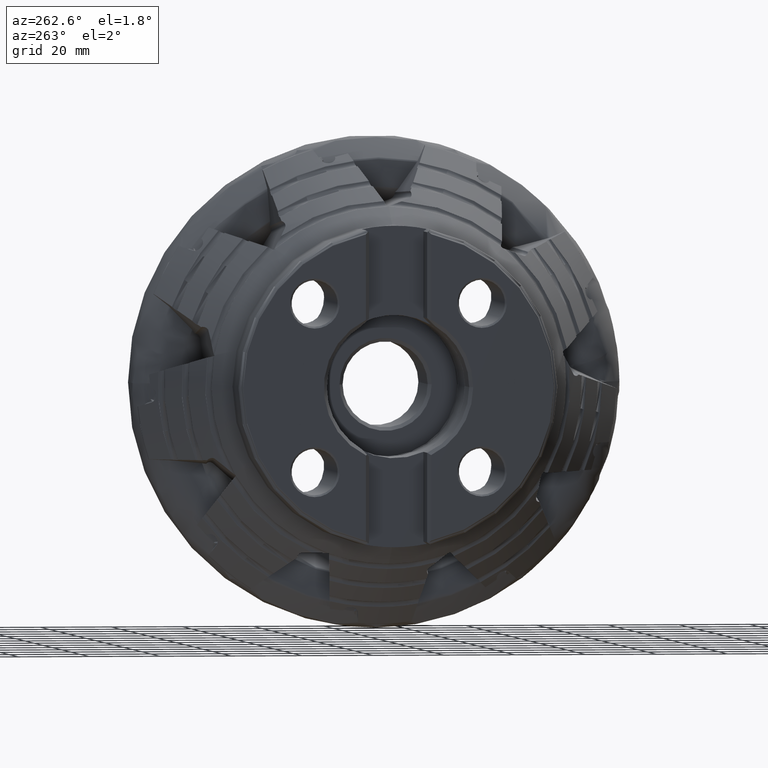
[diagram: clean part render]
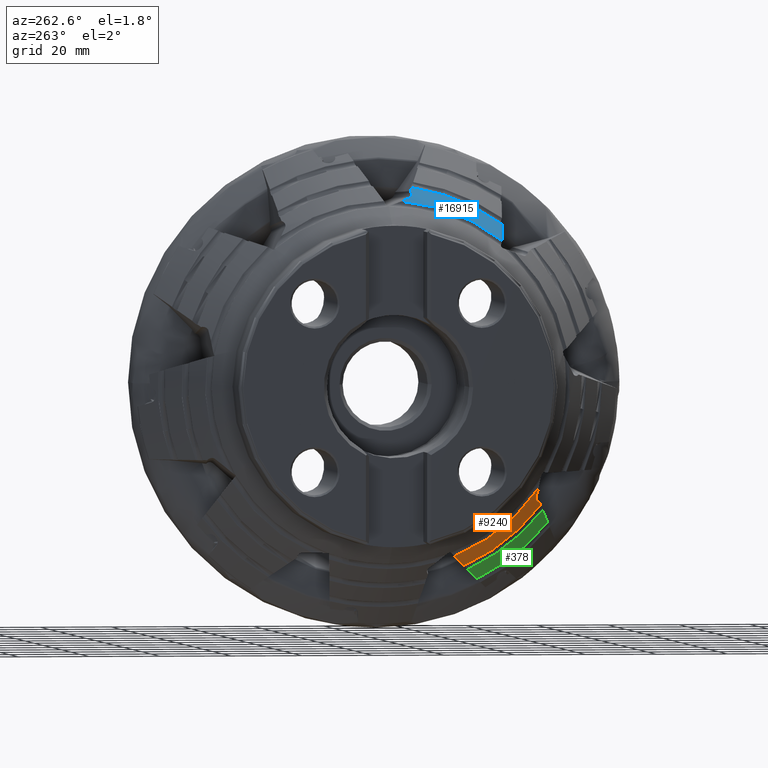
[diagram: same view with three faces highlighted in distinct colors, each labeled with its STEP entity id]
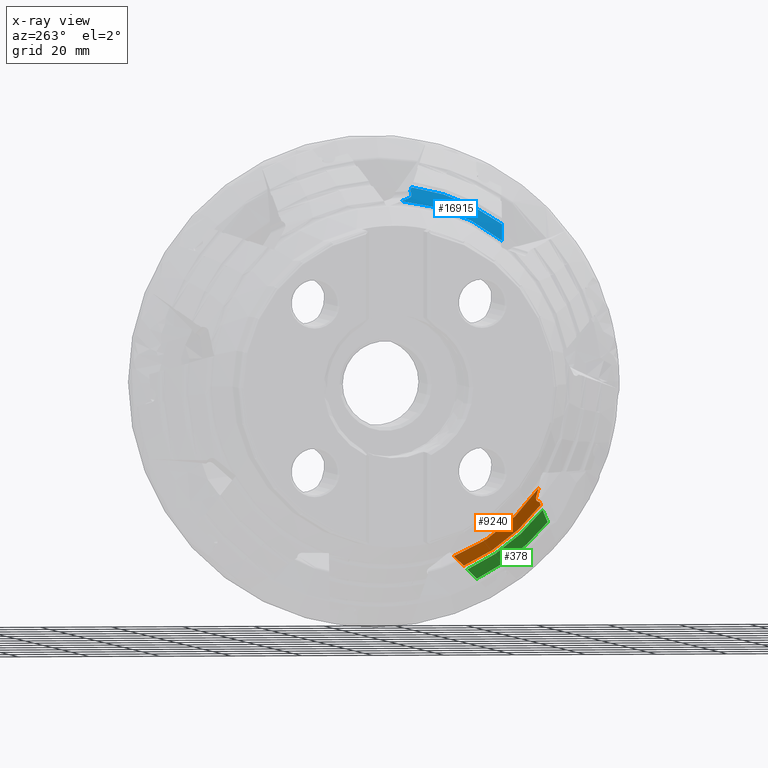
[diagram: x-ray of the same camera — body ghosted, the three highlighted faces saturated]
A machine part, auxiliary view with three faces highlighted in distinct colors.
The next image is the same camera in x-ray (body ghosted, the three faces saturated) — at least one of them is partly hidden behind the body in this view.
Their STEP definitions:

[orange] entity #9240 — the highlighted conical surface has half-angle 33.847 deg.
#342 = CARTESIAN_POINT ( 'NONE',  ( -35.91801058815429600, -42.08881131558297300, -32.21710358558977600 ) ) ;
#543 = EDGE_CURVE ( 'NONE', #12804, #7038, #8967, .T. ) ;
#1529 = CARTESIAN_POINT ( 'NONE',  ( -32.16035626415860800, -43.90779307008983100, -33.98536976128017500 ) ) ;
#1726 = CARTESIAN_POINT ( 'NONE',  ( -37.57567036652768200, -42.36912678928673900, -29.97184030076987000 ) ) ;
#1925 = ORIENTED_EDGE ( 'NONE', *, *, #543, .T. ) ;
#2095 = ORIENTED_EDGE ( 'NONE', *, *, #23099, .F. ) ;
#2127 = CARTESIAN_POINT ( 'NONE',  ( -36.24151932807742300, -42.04321666671850700, -31.91910318680345100 ) ) ;
#2216 = FACE_OUTER_BOUND ( 'NONE', #14053, .T. ) ;
#2265 = ORIENTED_EDGE ( 'NONE', *, *, #14610, .T. ) ;
#2474 = CARTESIAN_POINT ( 'NONE',  ( -38.12388201183328100, -42.52378834395867800, -29.09471103756513300 ) ) ;
#3372 = ORIENTED_EDGE ( 'NONE', *, *, #18133, .F. ) ;
#3489 = CARTESIAN_POINT ( 'NONE',  ( -36.42176563410360800, -42.06656929831624600, -31.68772909869990800 ) ) ;
#3579 = B_SPLINE_CURVE_WITH_KNOTS ( 'NONE', 3,
 ( #3643, #5254, #19691, #9004 ),
 .UNSPECIFIED., .F., .F.,
 ( 4, 4 ),
 ( 2.504790984672578500E-007, 0.007494700578969117400 ),
 .UNSPECIFIED. ) ;
#3643 = CARTESIAN_POINT ( 'NONE',  ( -32.16035626415861500, -22.17900665332467000, -50.90178104908064000 ) ) ;
#3681 = EDGE_CURVE ( 'NONE', #15860, #17598, #15294, .T. ) ;
#3696 = DIRECTION ( 'NONE',  ( 1.000000000000000000, -0.0000000000000000000, -0.0000000000000000000 ) ) ;
#3822 = CARTESIAN_POINT ( 'NONE',  ( -33.66444131984707200, -43.34804041317863700, -33.05830098728213800 ) ) ;
#3898 = CARTESIAN_POINT ( 'NONE',  ( -36.42176563410360800, -42.06656929831624600, -31.68772909869990800 ) ) ;
#5095 = CARTESIAN_POINT ( 'NONE',  ( -37.00734981136955100, -42.21683207173085600, -30.83554656366833800 ) ) ;
#5254 = CARTESIAN_POINT ( 'NONE',  ( -34.15505345330385700, -21.01443401130146400, -49.95002344848273200 ) ) ;
#5596 = CARTESIAN_POINT ( 'NONE',  ( -34.12278861039435200, -42.98620669405927000, -33.02533452862227400 ) ) ;
#6116 = CARTESIAN_POINT ( 'NONE',  ( -32.16035626415862200, 0.0000000000000000000, 0.0000000000000000000 ) ) ;
#7038 = VERTEX_POINT ( 'NONE', #2474 ) ;
#7132 = VERTEX_POINT ( 'NONE', #8431 ) ;
#7389 = CARTESIAN_POINT ( 'NONE',  ( -34.84525836289957800, -42.52778974297048400, -32.82647121514038000 ) ) ;
#7396 = CARTESIAN_POINT ( 'NONE',  ( -32.16035626415862200, 0.0000000000000000000, 0.0000000000000000000 ) ) ;
#8107 = ORIENTED_EDGE ( 'NONE', *, *, #14094, .T. ) ;
#8431 = CARTESIAN_POINT ( 'NONE',  ( -32.16035626415861500, -22.17900665332467000, -50.90178104908064000 ) ) ;
#8967 = B_SPLINE_CURVE_WITH_KNOTS ( 'NONE', 3,
 ( #3489, #5095, #1726, #15921 ),
 .UNSPECIFIED., .F., .F.,
 ( 4, 4 ),
 ( 0.003421948590724601400, 0.006556485191139369900 ),
 .UNSPECIFIED. ) ;
#9004 = CARTESIAN_POINT ( 'NONE',  ( -38.12388201183328100, -18.66948193731842700, -48.02317388171415000 ) ) ;
#9185 = CARTESIAN_POINT ( 'NONE',  ( -35.32819938346856500, -42.29273805317632200, -32.60092337524719900 ) ) ;
#9194 = DIRECTION ( 'NONE',  ( 0.0000000000000000000, 0.0000000000000000000, -1.000000000000000000 ) ) ;
#9240 = ADVANCED_FACE ( 'NONE', ( #2216 ), #15275, .T. ) ;
#10011 = AXIS2_PLACEMENT_3D ( 'NONE', #14343, #3696, #16139 ) ;
#10965 = CARTESIAN_POINT ( 'NONE',  ( -35.68725108820579100, -42.15414365355560700, -32.38621969506743200 ) ) ;
#12157 = CARTESIAN_POINT ( 'NONE',  ( -33.66444131984707200, -43.34804041317863700, -33.05830098728213800 ) ) ;
#12306 = CARTESIAN_POINT ( 'NONE',  ( -33.66444131984707200, -43.34804041317863700, -33.05830098728213800 ) ) ;
#12674 = CARTESIAN_POINT ( 'NONE',  ( -36.42176563410360800, -42.06656929831624600, -31.68772909869990800 ) ) ;
#12777 = CARTESIAN_POINT ( 'NONE',  ( -36.02954458331372200, -42.06512291623007400, -32.12499057188680500 ) ) ;
#12804 = VERTEX_POINT ( 'NONE', #12674 ) ;
#12891 = DIRECTION ( 'NONE',  ( 0.0000000000000000000, 0.0000000000000000000, -1.000000000000000000 ) ) ;
#13816 = B_SPLINE_CURVE_WITH_KNOTS ( 'NONE', 3,
 ( #3822, #14471, #5596, #18067, #7389, #19869, #9185, #21669, #10965, #342, #12777, #2127, #14548, #3898 ),
 .UNSPECIFIED., .F., .F.,
 ( 4, 2, 2, 2, 2, 2, 4 ),
 ( 1.993878817644829100E-015, 0.0008722271378357271500, 0.001744454275669460400, 0.002180567844586340100, 0.002616681413503219600, 0.003052794982420099000, 0.003488908551336978400 ),
 .UNSPECIFIED. ) ;
#14053 = EDGE_LOOP ( 'NONE', ( #14603, #2265, #1925, #8107, #3372, #2095 ) ) ;
#14060 = CIRCLE ( 'NONE', #18499, 55.52386559036361300 ) ;
#14094 = EDGE_CURVE ( 'NONE', #7038, #20273, #17573, .T. ) ;
#14343 = CARTESIAN_POINT ( 'NONE',  ( -38.12388201183328100, 0.0000000000000000000, 0.0000000000000000000 ) ) ;
#14471 = CARTESIAN_POINT ( 'NONE',  ( -33.89032110237289400, -43.15844464560716900, -33.05710519414331800 ) ) ;
#14548 = CARTESIAN_POINT ( 'NONE',  ( -36.33848921311723500, -42.04520030225511800, -31.80891869756488100 ) ) ;
#14603 = ORIENTED_EDGE ( 'NONE', *, *, #3681, .F. ) ;
#14610 = EDGE_CURVE ( 'NONE', #15860, #12804, #13816, .T. ) ;
#14673 = DIRECTION ( 'NONE',  ( 1.000000000000000000, -0.0000000000000000000, -0.0000000000000000000 ) ) ;
#15053 = CARTESIAN_POINT ( 'NONE',  ( -38.12388201183328100, -18.66948193731842700, -48.02317388171415000 ) ) ;
#15275 = CONICAL_SURFACE ( 'NONE', #22953, 55.52386559036361300, 0.5907460211846046200 ) ;
#15294 = B_SPLINE_CURVE_WITH_KNOTS ( 'NONE', 3,
 ( #12157, #17445, #19179, #1529 ),
 .UNSPECIFIED., .F., .F.,
 ( 4, 4 ),
 ( 0.002807482379769024000, 0.004660870408784266100 ),
 .UNSPECIFIED. ) ;
#15860 = VERTEX_POINT ( 'NONE', #12306 ) ;
#15921 = CARTESIAN_POINT ( 'NONE',  ( -38.12388201183328100, -42.52378834395867800, -29.09471103756513300 ) ) ;
#16139 = DIRECTION ( 'NONE',  ( 0.0000000000000000000, 0.0000000000000000000, -1.000000000000000000 ) ) ;
#17445 = CARTESIAN_POINT ( 'NONE',  ( -33.16333290191623500, -43.53475516365872300, -33.36765569241217100 ) ) ;
#17573 = CIRCLE ( 'NONE', #10011, 51.52450664956638300 ) ;
#17598 = VERTEX_POINT ( 'NONE', #19170 ) ;
#18067 = CARTESIAN_POINT ( 'NONE',  ( -34.59912141194487100, -42.67127421305284000, -32.91076029127629700 ) ) ;
#18133 = EDGE_CURVE ( 'NONE', #7132, #20273, #3579, .T. ) ;
#18499 = AXIS2_PLACEMENT_3D ( 'NONE', #7396, #19876, #9194 ) ;
#19170 = CARTESIAN_POINT ( 'NONE',  ( -32.16035626415860800, -43.90779307008983100, -33.98536976128017500 ) ) ;
#19179 = CARTESIAN_POINT ( 'NONE',  ( -32.66196568535141900, -43.72133674788356900, -33.67667183994928600 ) ) ;
#19691 = CARTESIAN_POINT ( 'NONE',  ( -36.14346861017473600, -19.84503302955294400, -48.99113813601469000 ) ) ;
#19869 = CARTESIAN_POINT ( 'NONE',  ( -35.20789371812079300, -42.34739444856050000, -32.66215974086105700 ) ) ;
#19876 = DIRECTION ( 'NONE',  ( 1.000000000000000000, -0.0000000000000000000, -0.0000000000000000000 ) ) ;
#20273 = VERTEX_POINT ( 'NONE', #15053 ) ;
#21669 = CARTESIAN_POINT ( 'NONE',  ( -35.56744482441340000, -42.19623201143919300, -32.46327347209073400 ) ) ;
#22953 = AXIS2_PLACEMENT_3D ( 'NONE', #6116, #14673, #12891 ) ;
#23099 = EDGE_CURVE ( 'NONE', #17598, #7132, #14060, .T. ) ;

[blue] entity #16915 — the highlighted conical surface has half-angle 33.847 deg.
#117 = ORIENTED_EDGE ( 'NONE', *, *, #12789, .T. ) ;
#396 = AXIS2_PLACEMENT_3D ( 'NONE', #18257, #20076, #2252 ) ;
#1451 = CARTESIAN_POINT ( 'NONE',  ( -35.79738113519563600, -6.927095839729766200, 52.63091764569689700 ) ) ;
#1939 = VERTEX_POINT ( 'NONE', #9984 ) ;
#1986 = CARTESIAN_POINT ( 'NONE',  ( -38.12388201183328100, -32.25454758326240100, 40.17983257406969200 ) ) ;
#2252 = DIRECTION ( 'NONE',  ( 0.0000000000000000000, 0.0000000000000000000, -1.000000000000000000 ) ) ;
#2422 = DIRECTION ( 'NONE',  ( 1.000000000000000000, -0.0000000000000000000, -0.0000000000000000000 ) ) ;
#2986 = CARTESIAN_POINT ( 'NONE',  ( -34.33438694985672900, -7.133417836041419800, 53.59322560490630800 ) ) ;
#3217 = CARTESIAN_POINT ( 'NONE',  ( -36.29530129395697500, -6.584702320433781800, 52.33849850843590400 ) ) ;
#3664 = EDGE_CURVE ( 'NONE', #12108, #7324, #4577, .T. ) ;
#4429 = ORIENTED_EDGE ( 'NONE', *, *, #20406, .F. ) ;
#4577 = B_SPLINE_CURVE_WITH_KNOTS ( 'NONE', 3,
 ( #20998, #8497, #17368, #10294, #22767, #12088, #1451, #13860, #3217, #15651 ),
 .UNSPECIFIED., .F., .F.,
 ( 4, 2, 2, 2, 4 ),
 ( 0.0008397642164196308100, 0.001502050300149011100, 0.002164336383878391500, 0.002826622467607771900, 0.003488908551337152300 ),
 .UNSPECIFIED. ) ;
#4827 = CARTESIAN_POINT ( 'NONE',  ( -38.12388201183328100, -32.25454758326240100, 40.17983257406969200 ) ) ;
#5150 = CARTESIAN_POINT ( 'NONE',  ( -34.33438694985672900, -7.133417836041419800, 53.59322560490630800 ) ) ;
#5491 = CARTESIAN_POINT ( 'NONE',  ( -37.00734981046703400, -5.595950629102300200, 51.97862232371089400 ) ) ;
#5504 = CARTESIAN_POINT ( 'NONE',  ( -33.16333325823531200, -7.129859788414753700, 54.38603154050667100 ) ) ;
#6070 = AXIS2_PLACEMENT_3D ( 'NONE', #19089, #8410, #20917 ) ;
#7324 = VERTEX_POINT ( 'NONE', #12802 ) ;
#8381 = ORIENTED_EDGE ( 'NONE', *, *, #16496, .F. ) ;
#8410 = DIRECTION ( 'NONE',  ( 1.000000000000000000, -0.0000000000000000000, -0.0000000000000000000 ) ) ;
#8446 = ORIENTED_EDGE ( 'NONE', *, *, #3664, .T. ) ;
#8497 = CARTESIAN_POINT ( 'NONE',  ( -34.51489498196944800, -7.157256662748523900, 53.46792965946605800 ) ) ;
#8591 = VERTEX_POINT ( 'NONE', #14039 ) ;
#8869 = VERTEX_POINT ( 'NONE', #20345 ) ;
#9090 = CARTESIAN_POINT ( 'NONE',  ( -32.16035626415861500, -7.478297035230952800, 55.01794910344823800 ) ) ;
#9587 = CARTESIAN_POINT ( 'NONE',  ( -32.16035626415861500, -7.478297035230952800, 55.01794910344823800 ) ) ;
#9920 = EDGE_CURVE ( 'NONE', #8591, #23096, #12193, .T. ) ;
#9984 = CARTESIAN_POINT ( 'NONE',  ( -33.66444131984705000, -6.955308254348968200, 54.06965469572831000 ) ) ;
#10067 = CARTESIAN_POINT ( 'NONE',  ( -33.88191421234225200, -7.045580865778110700, 53.91099537100110000 ) ) ;
#10294 = CARTESIAN_POINT ( 'NONE',  ( -35.06944840506221100, -7.138750957947714000, 53.09516173013775400 ) ) ;
#10873 = CARTESIAN_POINT ( 'NONE',  ( -38.12388201183328800, -3.934864702319318000, 51.37403648980340900 ) ) ;
#11297 = VERTEX_POINT ( 'NONE', #9587 ) ;
#12088 = CARTESIAN_POINT ( 'NONE',  ( -35.61620082866060200, -7.002538572258035100, 52.74344331087166900 ) ) ;
#12108 = VERTEX_POINT ( 'NONE', #5150 ) ;
#12193 = CIRCLE ( 'NONE', #6070, 51.52450664956638300 ) ;
#12789 = EDGE_CURVE ( 'NONE', #7324, #8591, #15185, .T. ) ;
#12802 = CARTESIAN_POINT ( 'NONE',  ( -36.42176563410360000, -6.409093738555153400, 52.27458221175038500 ) ) ;
#13051 = CARTESIAN_POINT ( 'NONE',  ( -32.16035626415862200, 0.0000000000000000000, 0.0000000000000000000 ) ) ;
#13622 = CARTESIAN_POINT ( 'NONE',  ( -34.10550672744486900, -7.103190727059629900, 53.75209811337041500 ) ) ;
#13697 = CARTESIAN_POINT ( 'NONE',  ( -34.15505345330386400, -32.75077222036348700, 43.17404542418031400 ) ) ;
#13860 = CARTESIAN_POINT ( 'NONE',  ( -36.13535728218605000, -6.718671738815960000, 52.42942573973541400 ) ) ;
#14039 = CARTESIAN_POINT ( 'NONE',  ( -38.12388201183328800, -3.934864702319318000, 51.37403648980340900 ) ) ;
#14845 = DIRECTION ( 'NONE',  ( 0.0000000000000000000, 0.0000000000000000000, -1.000000000000000000 ) ) ;
#15185 = B_SPLINE_CURVE_WITH_KNOTS ( 'NONE', 3,
 ( #19774, #5491, #21570, #10873 ),
 .UNSPECIFIED., .F., .F.,
 ( 4, 4 ),
 ( 0.003421960699968851000, 0.006556497295380618100 ),
 .UNSPECIFIED. ) ;
#15513 = CARTESIAN_POINT ( 'NONE',  ( -36.14346861017475000, -32.50505367132466000, 41.68187181054161500 ) ) ;
#15651 = CARTESIAN_POINT ( 'NONE',  ( -36.42176563410360000, -6.409093738555153400, 52.27458221175038500 ) ) ;
#16496 = EDGE_CURVE ( 'NONE', #11297, #8869, #18340, .T. ) ;
#16915 = ADVANCED_FACE ( 'NONE', ( #20712 ), #20149, .T. ) ;
#16969 = EDGE_LOOP ( 'NONE', ( #19091, #17312, #8446, #117, #21619, #4429, #8381 ) ) ;
#17118 = B_SPLINE_CURVE_WITH_KNOTS ( 'NONE', 3,
 ( #22547, #10067, #13622, #2986 ),
 .UNSPECIFIED., .F., .F.,
 ( 4, 4 ),
 ( 1.830083321236478500E-015, 0.0008397642164196308100 ),
 .UNSPECIFIED. ) ;
#17312 = ORIENTED_EDGE ( 'NONE', *, *, #19546, .T. ) ;
#17368 = CARTESIAN_POINT ( 'NONE',  ( -34.70039690799274000, -7.163620306289422100, 53.34154387472483400 ) ) ;
#17662 = B_SPLINE_CURVE_WITH_KNOTS ( 'NONE', 3,
 ( #17968, #5504, #19785, #9090 ),
 .UNSPECIFIED., .F., .F.,
 ( 4, 4 ),
 ( 0.003416906937423864200, 0.005270294394123138700 ),
 .UNSPECIFIED. ) ;
#17968 = CARTESIAN_POINT ( 'NONE',  ( -33.66444131984705000, -6.955308254348968200, 54.06965469572831000 ) ) ;
#18257 = CARTESIAN_POINT ( 'NONE',  ( -32.16035626415862200, 0.0000000000000000000, 0.0000000000000000000 ) ) ;
#18340 = CIRCLE ( 'NONE', #19621, 55.52386559036361300 ) ;
#19089 = CARTESIAN_POINT ( 'NONE',  ( -38.12388201183328100, 0.0000000000000000000, 0.0000000000000000000 ) ) ;
#19091 = ORIENTED_EDGE ( 'NONE', *, *, #22175, .F. ) ;
#19546 = EDGE_CURVE ( 'NONE', #1939, #12108, #17118, .T. ) ;
#19621 = AXIS2_PLACEMENT_3D ( 'NONE', #13051, #2422, #14845 ) ;
#19774 = CARTESIAN_POINT ( 'NONE',  ( -36.42176563410360000, -6.409093738555153400, 52.27458221175038500 ) ) ;
#19785 = CARTESIAN_POINT ( 'NONE',  ( -32.66196627812642800, -7.304184748609803700, 54.70212385783112600 ) ) ;
#20076 = DIRECTION ( 'NONE',  ( 1.000000000000000000, -0.0000000000000000000, -0.0000000000000000000 ) ) ;
#20149 = CONICAL_SURFACE ( 'NONE', #396, 55.52386559036361300, 0.5907460211846046200 ) ;
#20345 = CARTESIAN_POINT ( 'NONE',  ( -32.16035626415862200, -32.99273215971459900, 44.65847371702373200 ) ) ;
#20406 = EDGE_CURVE ( 'NONE', #8869, #23096, #21711, .T. ) ;
#20712 = FACE_OUTER_BOUND ( 'NONE', #16969, .T. ) ;
#20852 = CARTESIAN_POINT ( 'NONE',  ( -32.16035626415862200, -32.99273215971459900, 44.65847371702373200 ) ) ;
#20917 = DIRECTION ( 'NONE',  ( 0.0000000000000000000, 0.0000000000000000000, -1.000000000000000000 ) ) ;
#20998 = CARTESIAN_POINT ( 'NONE',  ( -34.33438694985672900, -7.133417836041419800, 53.59322560490630800 ) ) ;
#21570 = CARTESIAN_POINT ( 'NONE',  ( -37.57567036563876400, -4.771811705350415000, 51.67866028656502700 ) ) ;
#21619 = ORIENTED_EDGE ( 'NONE', *, *, #9920, .T. ) ;
#21711 = B_SPLINE_CURVE_WITH_KNOTS ( 'NONE', 3,
 ( #20852, #13697, #15513, #4827 ),
 .UNSPECIFIED., .F., .F.,
 ( 4, 4 ),
 ( 2.504790984748671200E-007, 0.007494700578969128700 ),
 .UNSPECIFIED. ) ;
#22175 = EDGE_CURVE ( 'NONE', #1939, #11297, #17662, .T. ) ;
#22547 = CARTESIAN_POINT ( 'NONE',  ( -33.66444131984705000, -6.955308254348968200, 54.06965469572831000 ) ) ;
#22767 = CARTESIAN_POINT ( 'NONE',  ( -35.25272462375025400, -7.108064268388927700, 52.97528065562914200 ) ) ;
#23096 = VERTEX_POINT ( 'NONE', #1986 ) ;

[green] entity #378 — the highlighted conical surface has half-angle 33.847 deg.
#378 = ADVANCED_FACE ( 'NONE', ( #18613 ), #22820, .T. ) ;
#969 = CARTESIAN_POINT ( 'NONE',  ( -29.81862810383058700, -23.54238053447998200, -52.01458494336052500 ) ) ;
#1122 = DIRECTION ( 'NONE',  ( 0.0000000000000000000, 0.0000000000000000000, -1.000000000000000000 ) ) ;
#1469 = ORIENTED_EDGE ( 'NONE', *, *, #15497, .T. ) ;
#2787 = CARTESIAN_POINT ( 'NONE',  ( -25.84587689748138600, -46.24538867103515800, -37.85056187403923600 ) ) ;
#2878 = CARTESIAN_POINT ( 'NONE',  ( -23.85510235615594300, 0.0000000000000000000, 0.0000000000000000000 ) ) ;
#3246 = AXIS2_PLACEMENT_3D ( 'NONE', #2878, #20660, #13515 ) ;
#3325 = EDGE_LOOP ( 'NONE', ( #3455, #1469, #16730, #16914 ) ) ;
#3455 = ORIENTED_EDGE ( 'NONE', *, *, #5584, .F. ) ;
#5584 = EDGE_CURVE ( 'NONE', #18904, #18446, #22134, .T. ) ;
#6557 = EDGE_CURVE ( 'NONE', #10355, #20288, #22752, .T. ) ;
#7419 = DIRECTION ( 'NONE',  ( 1.000000000000000000, -0.0000000000000000000, -0.0000000000000000000 ) ) ;
#7882 = CARTESIAN_POINT ( 'NONE',  ( -29.81862810383058700, -23.54238053447998200, -52.01458494336052500 ) ) ;
#8060 = CARTESIAN_POINT ( 'NONE',  ( -29.81862810383058700, -44.77673784153266500, -35.42321945180851400 ) ) ;
#10355 = VERTEX_POINT ( 'NONE', #11449 ) ;
#11382 = AXIS2_PLACEMENT_3D ( 'NONE', #18096, #7419, #19902 ) ;
#11449 = CARTESIAN_POINT ( 'NONE',  ( -23.85510235615593900, -26.98354594843566500, -54.81172466692101600 ) ) ;
#11696 = AXIS2_PLACEMENT_3D ( 'NONE', #22456, #11773, #1122 ) ;
#11773 = DIRECTION ( 'NONE',  ( 1.000000000000000000, -0.0000000000000000000, -0.0000000000000000000 ) ) ;
#12812 = CIRCLE ( 'NONE', #11382, 57.09431432340990400 ) ;
#13515 = DIRECTION ( 'NONE',  ( 0.0000000000000000000, 0.0000000000000000000, -1.000000000000000000 ) ) ;
#15015 = CIRCLE ( 'NONE', #11696, 61.09367326420711900 ) ;
#15225 = CARTESIAN_POINT ( 'NONE',  ( -23.85510235615593200, -46.97741761311399200, -39.05840687120743100 ) ) ;
#15497 = EDGE_CURVE ( 'NONE', #18904, #20288, #12812, .T. ) ;
#16013 = EDGE_CURVE ( 'NONE', #18446, #10355, #15015, .T. ) ;
#16730 = ORIENTED_EDGE ( 'NONE', *, *, #6557, .F. ) ;
#16896 = CARTESIAN_POINT ( 'NONE',  ( -25.84780449808965500, -25.84033036367436200, -53.88498321348300400 ) ) ;
#16914 = ORIENTED_EDGE ( 'NONE', *, *, #16013, .F. ) ;
#17431 = CARTESIAN_POINT ( 'NONE',  ( -29.81862810383058700, -44.77673784153266500, -35.42321945180851400 ) ) ;
#18096 = CARTESIAN_POINT ( 'NONE',  ( -29.81862810383058700, 0.0000000000000000000, 0.0000000000000000000 ) ) ;
#18446 = VERTEX_POINT ( 'NONE', #21080 ) ;
#18613 = FACE_OUTER_BOUND ( 'NONE', #3325, .T. ) ;
#18904 = VERTEX_POINT ( 'NONE', #17431 ) ;
#19902 = DIRECTION ( 'NONE',  ( 0.0000000000000000000, 0.0000000000000000000, -1.000000000000000000 ) ) ;
#20288 = VERTEX_POINT ( 'NONE', #7882 ) ;
#20514 = CARTESIAN_POINT ( 'NONE',  ( -27.83600484921389300, -24.69355838765347500, -52.95301913417387100 ) ) ;
#20660 = DIRECTION ( 'NONE',  ( 1.000000000000000000, -0.0000000000000000000, -0.0000000000000000000 ) ) ;
#21080 = CARTESIAN_POINT ( 'NONE',  ( -23.85510235615593200, -46.97741761311399200, -39.05840687120743100 ) ) ;
#22134 = B_SPLINE_CURVE_WITH_KNOTS ( 'NONE', 3,
 ( #8060, #22342, #2787, #15225 ),
 .UNSPECIFIED., .F., .F.,
 ( 4, 4 ),
 ( 2.459730543302651200E-007, 0.007322897021300582000 ),
 .UNSPECIFIED. ) ;
#22295 = CARTESIAN_POINT ( 'NONE',  ( -23.85510235615593900, -26.98354594843566500, -54.81172466692101600 ) ) ;
#22342 = CARTESIAN_POINT ( 'NONE',  ( -27.83395231847125500, -45.51195064888344200, -36.63914200220697400 ) ) ;
#22456 = CARTESIAN_POINT ( 'NONE',  ( -23.85510235615594300, 0.0000000000000000000, 0.0000000000000000000 ) ) ;
#22752 = B_SPLINE_CURVE_WITH_KNOTS ( 'NONE', 3,
 ( #22295, #16896, #20514, #969 ),
 .UNSPECIFIED., .F., .F.,
 ( 4, 4 ),
 ( 2.486284890428563200E-007, 0.007431887033477765600 ),
 .UNSPECIFIED. ) ;
#22820 = CONICAL_SURFACE ( 'NONE', #3246, 61.09367326420711900, 0.5907460211846051700 ) ;